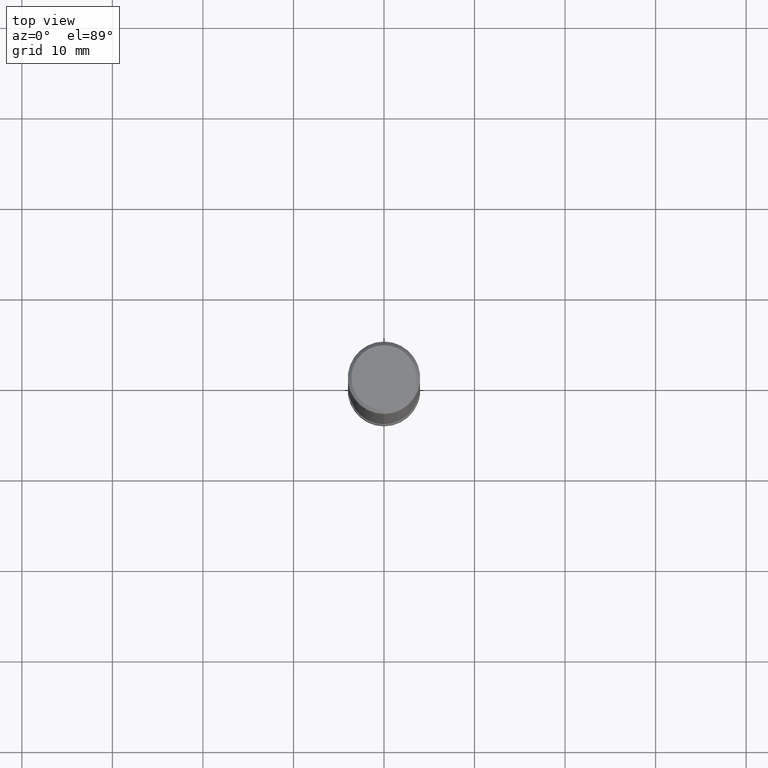
[diagram: clean part render]
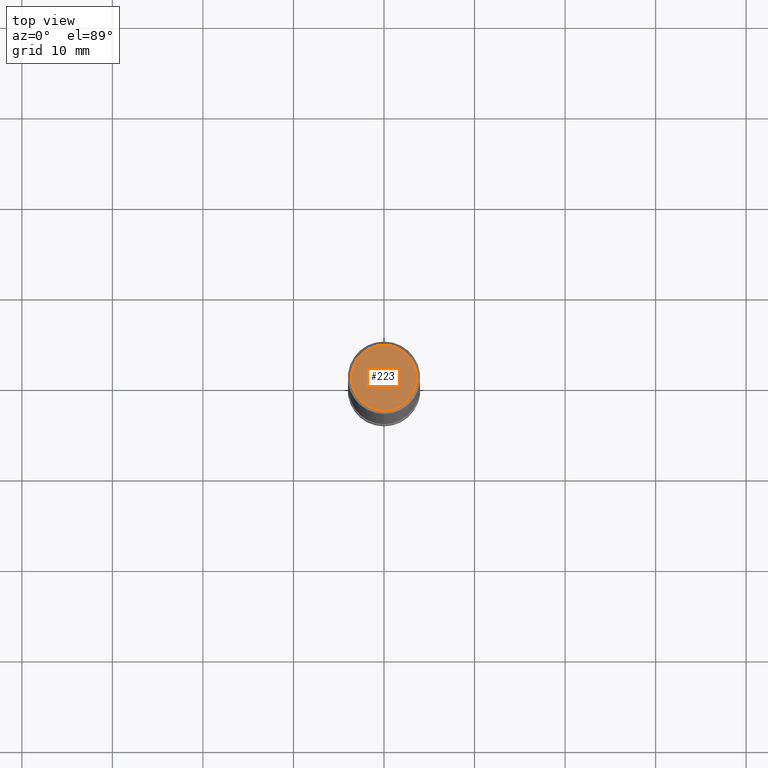
[diagram: same view with one face highlighted and labeled with its STEP entity id]
A machine part, top view. The second image highlights one B-rep face of the part: STEP entity #223.
In plain terms, the highlighted planar face has unit normal (-0, 0, 1).
Its self-contained STEP definition (entity closure, byte-faithful):
#185=VERTEX_POINT('',#382);
#195=EDGE_CURVE('',#185,#203,#393,.T.);
#203=VERTEX_POINT('',#403);
#223=ADVANCED_FACE('',(#426),#427,.T.);
#247=EDGE_CURVE('',#203,#185,#453,.T.);
#382=CARTESIAN_POINT('',(0.0,3.6,0.0));
#393=CIRCLE('',#626,3.6);
#403=CARTESIAN_POINT('',(4.40858287376056E-016,-3.6,0.0));
#426=FACE_OUTER_BOUND('',#662,.T.);
#427=PLANE('',#663);
#453=CIRCLE('',#696,3.6);
#626=AXIS2_PLACEMENT_3D('',#866,#867,#868);
#662=EDGE_LOOP('',(#911,#912));
#663=AXIS2_PLACEMENT_3D('',#913,#914,#915);
#696=AXIS2_PLACEMENT_3D('',#937,#938,#939);
#866=CARTESIAN_POINT('',(0.0,0.0,0.0));
#867=DIRECTION('',(0.0,0.0,-1.0));
#868=DIRECTION('',(0.0,1.0,0.0));
#911=ORIENTED_EDGE('',*,*,#195,.F.);
#912=ORIENTED_EDGE('',*,*,#247,.F.);
#913=CARTESIAN_POINT('',(0.0,1.8,0.0));
#914=DIRECTION('',(-0.0,0.0,1.0));
#915=DIRECTION('',(0.0,-1.0,0.0));
#937=CARTESIAN_POINT('',(0.0,0.0,0.0));
#938=DIRECTION('',(0.0,0.0,-1.0));
#939=DIRECTION('',(0.0,1.0,0.0));